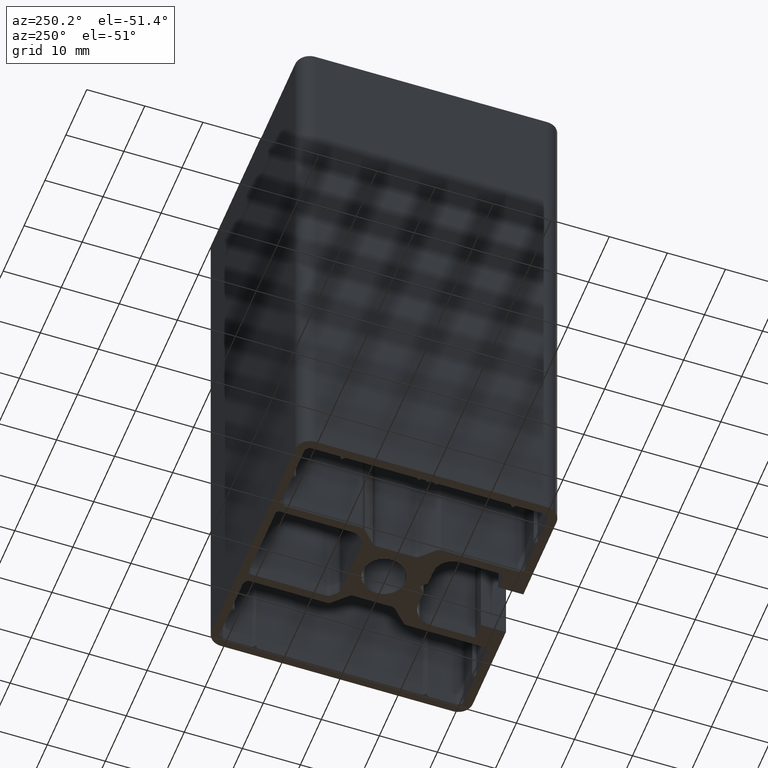
[diagram: clean part render]
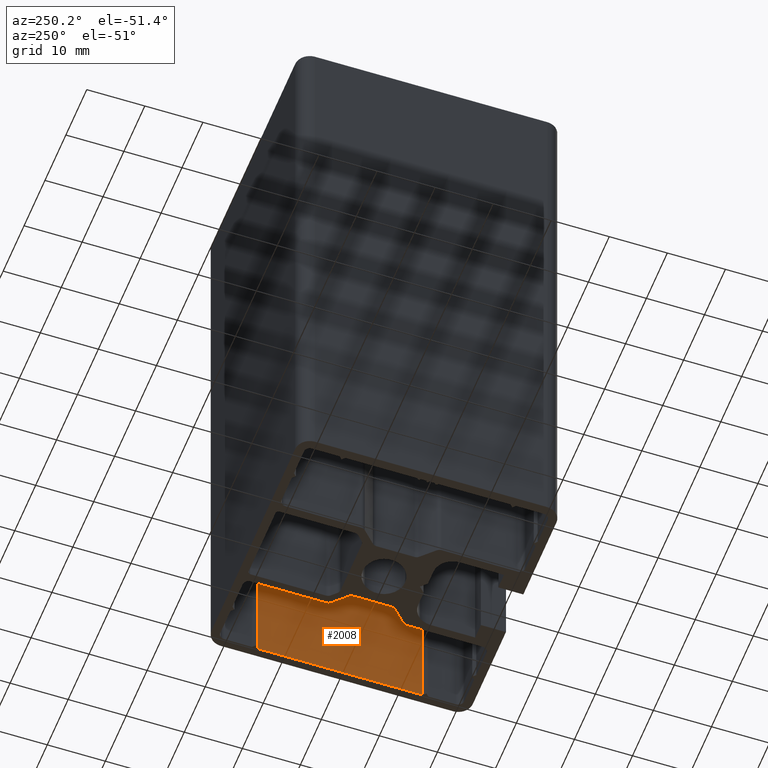
[diagram: same view with one face highlighted and labeled with its STEP entity id]
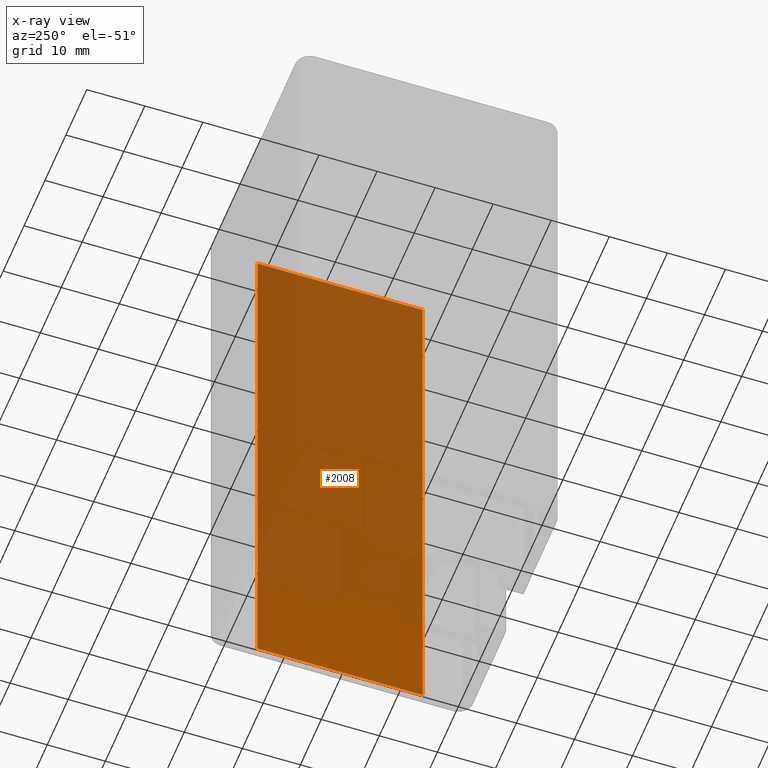
[diagram: x-ray of the same camera — body ghosted, the highlighted face saturated]
A machine part, auxiliary view. The second image highlights one B-rep face of the part: STEP entity #2008.
The next image is the same camera in x-ray: the body ghosted, the highlighted face saturated — about 82% of this face is hidden behind the body in this view.
In plain terms, the highlighted planar face has unit normal (1, -0, 0).
Its self-contained STEP definition (entity closure, byte-faithful):
#148=FACE_OUTER_BOUND('',#252,.T.);
#252=EDGE_LOOP('',(#1362,#1363,#1364,#1365));
#381=LINE('',#2938,#610);
#382=LINE('',#2941,#611);
#383=LINE('',#2943,#612);
#384=LINE('',#2944,#613);
#610=VECTOR('',#2340,100.);
#611=VECTOR('',#2343,28.390443075207);
#612=VECTOR('',#2344,28.390443075207);
#613=VECTOR('',#2345,100.);
#833=VERTEX_POINT('',#2934);
#834=VERTEX_POINT('',#2936);
#835=VERTEX_POINT('',#2940);
#836=VERTEX_POINT('',#2942);
#1047=EDGE_CURVE('',#834,#833,#381,.T.);
#1048=EDGE_CURVE('',#833,#835,#382,.T.);
#1049=EDGE_CURVE('',#836,#834,#383,.T.);
#1050=EDGE_CURVE('',#836,#835,#384,.T.);
#1362=ORIENTED_EDGE('',*,*,#1048,.F.);
#1363=ORIENTED_EDGE('',*,*,#1047,.F.);
#1364=ORIENTED_EDGE('',*,*,#1049,.F.);
#1365=ORIENTED_EDGE('',*,*,#1050,.T.);
#1940=PLANE('',#2118);
#2008=ADVANCED_FACE('',(#148),#1940,.F.);
#2118=AXIS2_PLACEMENT_3D('',#2939,#2341,#2342);
#2340=DIRECTION('',(0.,0.,1.));
#2341=DIRECTION('center_axis',(1.,-8.13394805112067E-15,0.));
#2342=DIRECTION('ref_axis',(0.,0.,-1.));
#2343=DIRECTION('',(-8.13394805112067E-15,-1.,0.));
#2344=DIRECTION('',(8.13394805112067E-15,1.,0.));
#2345=DIRECTION('',(0.,0.,1.));
#2934=CARTESIAN_POINT('',(20.996915771936,14.1985470646397,100.));
#2936=CARTESIAN_POINT('',(20.996915771936,14.1985470646397,0.));
#2938=CARTESIAN_POINT('',(20.996915771936,14.1985470646397,0.));
#2939=CARTESIAN_POINT('Origin',(20.996915771936,14.1985470646397,0.));
#2940=CARTESIAN_POINT('',(20.9969157719357,-14.1918960105673,100.));
#2941=CARTESIAN_POINT('',(20.9969157719359,7.09927353231976,100.));
#2942=CARTESIAN_POINT('',(20.9969157719357,-14.1918960105673,0.));
#2943=CARTESIAN_POINT('',(20.9969157719359,7.09927353231976,0.));
#2944=CARTESIAN_POINT('',(20.9969157719357,-14.1918960105673,0.));